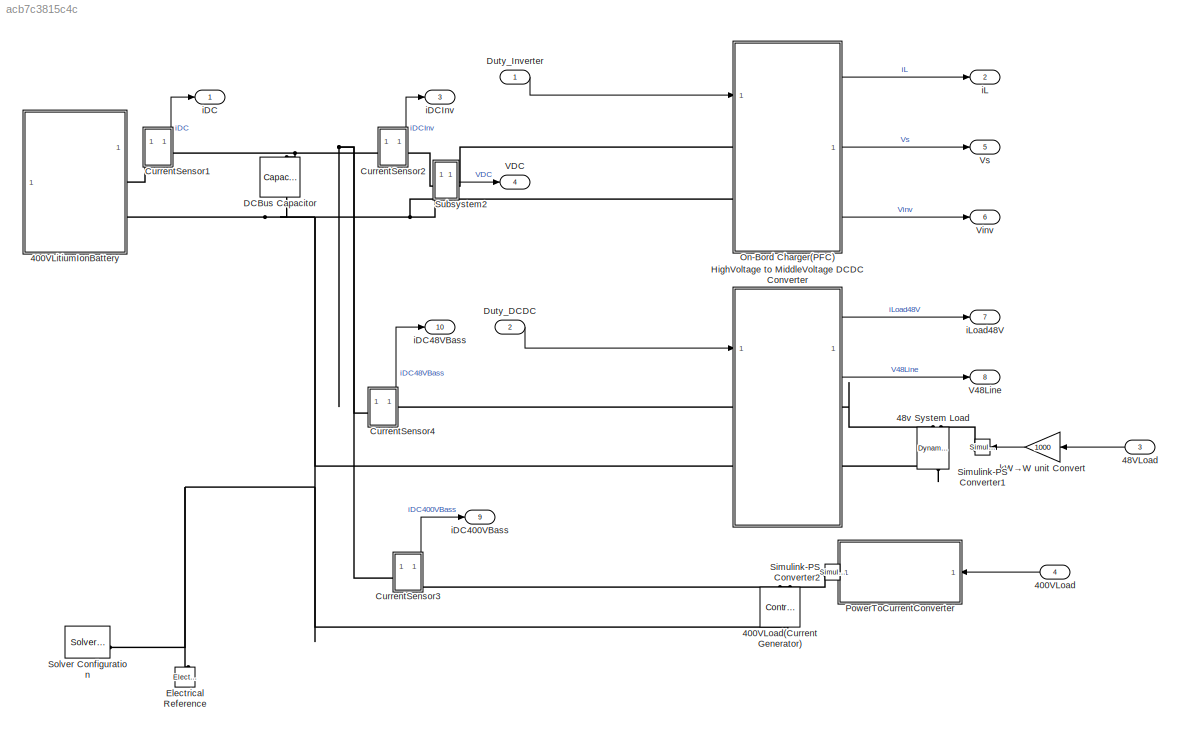
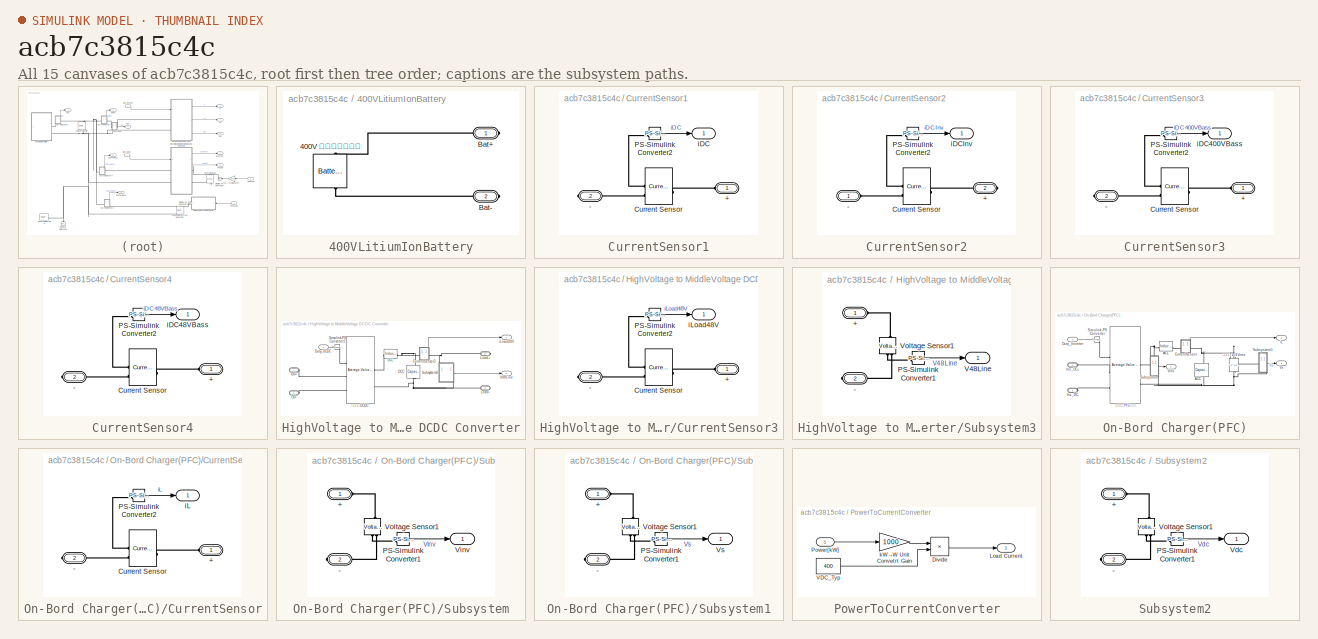
[diagram: thumbnail index - all 15 canvases of the model, root first then tree order]
MODEL slx_acb7c3815c4c
KIND model
CONFIG AbsTol = 1e-3
CONFIG EnableMultiTasking = off
CONFIG FixedStep = auto
CONFIG MaxStep = auto
CONFIG MinStep = auto
CONFIG RelTol = 1e-3
CONFIG SampleTimeConstraint = Unconstrained
CONFIG SolverName = ode23t
CONFIG StartTime = 0.0
CONFIG StopTime = 20
BLOCK [SubSystem] 400VLitiumIonBattery
BLOCK [Reference] 400VLitiumIonBattery/400V 理想特性蓄電池  REF=batteryecm_lib/Battery
  NameLocation = left
  SourceBlock = batteryecm_lib/Battery
  SourceType = Battery
BLOCK [PMIOPort] 400VLitiumIonBattery/Bat+
  Side = Right
BLOCK [PMIOPort] 400VLitiumIonBattery/Bat-
  Port = 2
  Side = Right
BLOCK [Inport] 400VLoad
  NameLocation = top
  Port = 4
BLOCK [Reference] 400VLoad(Current Generator)  REF=fl_lib/Electrical/Electrical Sources/Controlled Current
Source
  NameLocation = left
  SourceBlock = fl_lib/Electrical/Electrical Sources/Controlled Current\nSource
  SourceType = Controlled Current\nSource
BLOCK [Inport] 48VLoad
  Port = 3
BLOCK [Reference] 48v System Load  REF=ee_lib/Passive/Dynamic Load
  SourceBlock = ee_lib/Passive/Dynamic Load
  SourceType = Dynamic Load
BLOCK [SubSystem] CurrentSensor1
  PortSchema = {"entries":[{"content":{"sides":[{"content":{"connectorIds":["LConn1"]},"type":"ConnectorPlacement.EquallySpacedRectSide","uuid":"7286f59e-cee0-499d-832c-cf6f33a1b017"},{"content":{"connectorIds":["RConn1"],"side":"RIGHT"},"type":"ConnectorPlacement.EquallySpacedRectSide","uuid":"6a983281-a6bc-4a57-a5ba-c4da9a8828f4"},{"content":{"connectorIds":["Out1"],"side":"TOP"},"type":"ConnectorPlacement.Equ...<+251ch>  <repeated x6 — deduplicated; at blocks: CurrentSensor1, CurrentSensor2, CurrentSensor3, CurrentSensor4, CurrentSensor>
BLOCK [PMIOPort] CurrentSensor1/+
  Side = Left
BLOCK [PMIOPort] CurrentSensor1/-
  Port = 2
  Side = Right
BLOCK [Reference] CurrentSensor1/Current Sensor  REF=fl_lib/Electrical/Electrical Sensors/Current Sensor
  NameLocation = top
  SourceBlock = fl_lib/Electrical/Electrical Sensors/Current Sensor
  SourceType = Current Sensor
BLOCK [Reference] CurrentSensor1/PS-Simulink Converter2  REF=nesl_utility/PS-Simulink
Converter
  SourceBlock = nesl_utility/PS-Simulink\nConverter
  SourceType = PS-Simulink\nConverter
BLOCK [Outport] CurrentSensor1/iDC
BLOCK [SubSystem] CurrentSensor2
BLOCK [PMIOPort] CurrentSensor2/+
  Port = 2
  Side = Right
BLOCK [PMIOPort] CurrentSensor2/-
  Side = Left
BLOCK [Reference] CurrentSensor2/Current Sensor  REF=fl_lib/Electrical/Electrical Sensors/Current Sensor
  NameLocation = top
  SourceBlock = fl_lib/Electrical/Electrical Sensors/Current Sensor
  SourceType = Current Sensor
BLOCK [Reference] CurrentSensor2/PS-Simulink Converter2  REF=nesl_utility/PS-Simulink
Converter
  SourceBlock = nesl_utility/PS-Simulink\nConverter
  SourceType = PS-Simulink\nConverter
BLOCK [Outport] CurrentSensor2/iDCInv
BLOCK [SubSystem] CurrentSensor3
BLOCK [PMIOPort] CurrentSensor3/+
  Side = Left
BLOCK [PMIOPort] CurrentSensor3/-
  Port = 2
  Side = Right
BLOCK [Reference] CurrentSensor3/Current Sensor  REF=fl_lib/Electrical/Electrical Sensors/Current Sensor
  NameLocation = top
  SourceBlock = fl_lib/Electrical/Electrical Sensors/Current Sensor
  SourceType = Current Sensor
BLOCK [Reference] CurrentSensor3/PS-Simulink Converter2  REF=nesl_utility/PS-Simulink
Converter
  SourceBlock = nesl_utility/PS-Simulink\nConverter
  SourceType = PS-Simulink\nConverter
BLOCK [Outport] CurrentSensor3/iDC400VBass
BLOCK [SubSystem] CurrentSensor4
BLOCK [PMIOPort] CurrentSensor4/+
  Side = Left
BLOCK [PMIOPort] CurrentSensor4/-
  Port = 2
  Side = Right
BLOCK [Reference] CurrentSensor4/Current Sensor  REF=fl_lib/Electrical/Electrical Sensors/Current Sensor
  NameLocation = top
  SourceBlock = fl_lib/Electrical/Electrical Sensors/Current Sensor
  SourceType = Current Sensor
BLOCK [Reference] CurrentSensor4/PS-Simulink Converter2  REF=nesl_utility/PS-Simulink
Converter
  SourceBlock = nesl_utility/PS-Simulink\nConverter
  SourceType = PS-Simulink\nConverter
BLOCK [Outport] CurrentSensor4/iDC48VBass
BLOCK [Reference] DCBus Capacitor  REF=ee_lib/Passive/Capacitor
  NameLocation = left
  SourceBlock = ee_lib/Passive/Capacitor
  SourceType = Capacitor
BLOCK [Inport] Duty_DCDC
  OutDataTypeStr = double
  Port = 2
  PortDimensions = 1
  SampleTime = 0
  SamplingMode = Sample based
  SignalType = real
BLOCK [Inport] Duty_Inverter
  OutDataTypeStr = double
  PortDimensions = 1
  SampleTime = 0
  SamplingMode = Sample based
  SignalType = real
BLOCK [Reference] Electrical Reference  REF=fl_lib/Electrical/Electrical Elements/Electrical Reference
  SourceBlock = fl_lib/Electrical/Electrical Elements/Electrical Reference
  SourceType = Electrical Reference
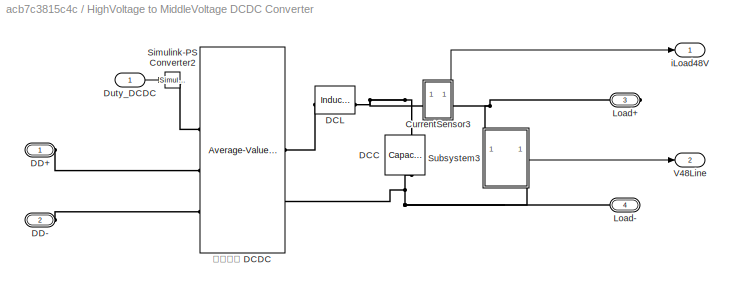
BLOCK [SubSystem] HighVoltage to MiddleVoltage DCDC Converter
BLOCK [SubSystem] HighVoltage to MiddleVoltage DCDC Converter/CurrentSensor3
BLOCK [PMIOPort] HighVoltage to MiddleVoltage DCDC Converter/CurrentSensor3/+
  Side = Left
BLOCK [PMIOPort] HighVoltage to MiddleVoltage DCDC Converter/CurrentSensor3/-
  Port = 2
  Side = Right
BLOCK [Reference] HighVoltage to MiddleVoltage DCDC Converter/CurrentSensor3/Current Sensor  REF=fl_lib/Electrical/Electrical Sensors/Current Sensor
  NameLocation = top
  SourceBlock = fl_lib/Electrical/Electrical Sensors/Current Sensor
  SourceType = Current Sensor
BLOCK [Reference] HighVoltage to MiddleVoltage DCDC Converter/CurrentSensor3/PS-Simulink Converter2  REF=nesl_utility/PS-Simulink
Converter
  SourceBlock = nesl_utility/PS-Simulink\nConverter
  SourceType = PS-Simulink\nConverter
BLOCK [Outport] HighVoltage to MiddleVoltage DCDC Converter/CurrentSensor3/iLoad48V
BLOCK [Reference] HighVoltage to MiddleVoltage DCDC Converter/DCC  REF=ee_lib/Passive/Capacitor
  NameLocation = left
  SourceBlock = ee_lib/Passive/Capacitor
  SourceType = Capacitor
BLOCK [Reference] HighVoltage to MiddleVoltage DCDC Converter/DCL  REF=ee_lib/Passive/Inductor
  SourceBlock = ee_lib/Passive/Inductor
  SourceType = Inductor
BLOCK [PMIOPort] HighVoltage to MiddleVoltage DCDC Converter/DD+
  Side = Left
BLOCK [PMIOPort] HighVoltage to MiddleVoltage DCDC Converter/DD-
  Port = 2
  Side = Left
BLOCK [Inport] HighVoltage to MiddleVoltage DCDC Converter/Duty_DCDC
BLOCK [PMIOPort] HighVoltage to MiddleVoltage DCDC Converter/Load+
  NameLocation = top
  Port = 3
  Side = Right
BLOCK [PMIOPort] HighVoltage to MiddleVoltage DCDC Converter/Load-
  NameLocation = top
  Port = 4
  Side = Right
BLOCK [Reference] HighVoltage to MiddleVoltage DCDC Converter/Simulink-PS Converter2  REF=nesl_utility/Simulink-PS
Converter
  SourceBlock = nesl_utility/Simulink-PS\nConverter
  SourceType = Simulink-PS\nConverter
BLOCK [SubSystem] HighVoltage to MiddleVoltage DCDC Converter/Subsystem3
  PortSchema = {"entries":[{"content":{"sides":[{"content":{"connectorIds":[]},"type":"ConnectorPlacement.EquallySpacedRectSide","uuid":"7286f59e-cee0-499d-832c-cf6f33a1b017"},{"content":{"connectorIds":["Out1"],"side":"RIGHT"},"type":"ConnectorPlacement.EquallySpacedRectSide","uuid":"6a983281-a6bc-4a57-a5ba-c4da9a8828f4"},{"content":{"connectorIds":["LConn1"],"side":"TOP"},"type":"ConnectorPlacement.EquallySpac...<+395ch>  <repeated x3 — deduplicated; at blocks: Subsystem3, Subsystem, Subsystem1>
BLOCK [PMIOPort] HighVoltage to MiddleVoltage DCDC Converter/Subsystem3/+
  Side = Left
BLOCK [PMIOPort] HighVoltage to MiddleVoltage DCDC Converter/Subsystem3/-
  NameLocation = top
  Port = 2
  Side = Right
BLOCK [Reference] HighVoltage to MiddleVoltage DCDC Converter/Subsystem3/PS-Simulink Converter1  REF=nesl_utility/PS-Simulink
Converter
  SourceBlock = nesl_utility/PS-Simulink\nConverter
  SourceType = PS-Simulink\nConverter
BLOCK [Outport] HighVoltage to MiddleVoltage DCDC Converter/Subsystem3/V48Line
BLOCK [Reference] HighVoltage to MiddleVoltage DCDC Converter/Subsystem3/Voltage Sensor1  REF=fl_lib/Electrical/Electrical Sensors/Voltage Sensor
  NameLocation = right
  SourceBlock = fl_lib/Electrical/Electrical Sensors/Voltage Sensor
  SourceType = Voltage Sensor
BLOCK [Outport] HighVoltage to MiddleVoltage DCDC Converter/V48Line
  Port = 2
BLOCK [Outport] HighVoltage to MiddleVoltage DCDC Converter/iLoad48V
BLOCK [Reference] HighVoltage to MiddleVoltage DCDC Converter/平均電圧 DCDC  REF=ee_lib/Semiconductors &
Converters/Converters/Average-Value
Chopper
  SourceBlock = ee_lib/Semiconductors &\nConverters/Converters/Average-Value\nChopper
  SourceType = Average-Value\nChopper
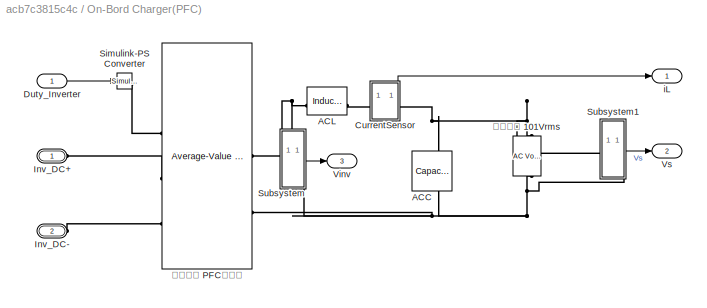
BLOCK [SubSystem] On-Bord Charger(PFC)
BLOCK [Reference] On-Bord Charger(PFC)/ACC  REF=ee_lib/Passive/Capacitor
  NameLocation = right
  SourceBlock = ee_lib/Passive/Capacitor
  SourceType = Capacitor
BLOCK [Reference] On-Bord Charger(PFC)/ACL  REF=ee_lib/Passive/Inductor
  SourceBlock = ee_lib/Passive/Inductor
  SourceType = Inductor
BLOCK [SubSystem] On-Bord Charger(PFC)/CurrentSensor
BLOCK [PMIOPort] On-Bord Charger(PFC)/CurrentSensor/+
  Side = Left
BLOCK [PMIOPort] On-Bord Charger(PFC)/CurrentSensor/-
  Port = 2
  Side = Right
BLOCK [Reference] On-Bord Charger(PFC)/CurrentSensor/Current Sensor  REF=fl_lib/Electrical/Electrical Sensors/Current Sensor
  NameLocation = top
  SourceBlock = fl_lib/Electrical/Electrical Sensors/Current Sensor
  SourceType = Current Sensor
BLOCK [Reference] On-Bord Charger(PFC)/CurrentSensor/PS-Simulink Converter2  REF=nesl_utility/PS-Simulink
Converter
  SourceBlock = nesl_utility/PS-Simulink\nConverter
  SourceType = PS-Simulink\nConverter
BLOCK [Outport] On-Bord Charger(PFC)/CurrentSensor/iL
BLOCK [Inport] On-Bord Charger(PFC)/Duty_Inverter
BLOCK [PMIOPort] On-Bord Charger(PFC)/Inv_DC+
  Side = Left
BLOCK [PMIOPort] On-Bord Charger(PFC)/Inv_DC-
  Port = 2
  Side = Left
BLOCK [Reference] On-Bord Charger(PFC)/Simulink-PS Converter  REF=nesl_utility/Simulink-PS
Converter
  SourceBlock = nesl_utility/Simulink-PS\nConverter
  SourceType = Simulink-PS\nConverter
BLOCK [SubSystem] On-Bord Charger(PFC)/Subsystem
BLOCK [PMIOPort] On-Bord Charger(PFC)/Subsystem/+
  Side = Left
BLOCK [PMIOPort] On-Bord Charger(PFC)/Subsystem/-
  NameLocation = top
  Port = 2
  Side = Right
BLOCK [Reference] On-Bord Charger(PFC)/Subsystem/PS-Simulink Converter1  REF=nesl_utility/PS-Simulink
Converter
  SourceBlock = nesl_utility/PS-Simulink\nConverter
  SourceType = PS-Simulink\nConverter
BLOCK [Outport] On-Bord Charger(PFC)/Subsystem/Vinv
BLOCK [Reference] On-Bord Charger(PFC)/Subsystem/Voltage Sensor1  REF=fl_lib/Electrical/Electrical Sensors/Voltage Sensor
  NameLocation = right
  SourceBlock = fl_lib/Electrical/Electrical Sensors/Voltage Sensor
  SourceType = Voltage Sensor
BLOCK [SubSystem] On-Bord Charger(PFC)/Subsystem1
BLOCK [PMIOPort] On-Bord Charger(PFC)/Subsystem1/+
  Side = Left
BLOCK [PMIOPort] On-Bord Charger(PFC)/Subsystem1/-
  NameLocation = top
  Port = 2
  Side = Right
BLOCK [Reference] On-Bord Charger(PFC)/Subsystem1/PS-Simulink Converter1  REF=nesl_utility/PS-Simulink
Converter
  SourceBlock = nesl_utility/PS-Simulink\nConverter
  SourceType = PS-Simulink\nConverter
BLOCK [Reference] On-Bord Charger(PFC)/Subsystem1/Voltage Sensor1  REF=fl_lib/Electrical/Electrical Sensors/Voltage Sensor
  NameLocation = right
  SourceBlock = fl_lib/Electrical/Electrical Sensors/Voltage Sensor
  SourceType = Voltage Sensor
BLOCK [Outport] On-Bord Charger(PFC)/Subsystem1/Vs
BLOCK [Outport] On-Bord Charger(PFC)/Vinv
  Port = 3
BLOCK [Outport] On-Bord Charger(PFC)/Vs
  Port = 2
BLOCK [Outport] On-Bord Charger(PFC)/iL
BLOCK [Reference] On-Bord Charger(PFC)/平均電圧 PFCモデル  REF=ee_lib/Semiconductors &
Converters/Converters/Average-Value
Chopper
  SourceBlock = ee_lib/Semiconductors &\nConverters/Converters/Average-Value\nChopper
  SourceType = Average-Value\nChopper
BLOCK [Reference] On-Bord Charger(PFC)/系統電圧 101Vrms  REF=fl_lib/Electrical/Electrical Sources/AC Voltage Source
  NameLocation = right
  SourceBlock = fl_lib/Electrical/Electrical Sources/AC Voltage Source
  SourceType = AC Voltage Source
BLOCK [SubSystem] PowerToCurrentConverter
BLOCK [Product] PowerToCurrentConverter/Divide
  Inputs = */
BLOCK [Outport] PowerToCurrentConverter/Load Current
  NameLocation = top
BLOCK [Inport] PowerToCurrentConverter/Power[kW]
  NameLocation = top
BLOCK [Constant] PowerToCurrentConverter/VDC_Typ
  Value = 400
BLOCK [Gain] PowerToCurrentConverter/kW→W Unit Convetrt Gain
  Gain = 1000
  NameLocation = top
BLOCK [Reference] Simulink-PS Converter1  REF=nesl_utility/Simulink-PS
Converter
  NameLocation = top
  SourceBlock = nesl_utility/Simulink-PS\nConverter
  SourceType = Simulink-PS\nConverter
BLOCK [Reference] Simulink-PS Converter2  REF=nesl_utility/Simulink-PS
Converter
  NameLocation = top
  SourceBlock = nesl_utility/Simulink-PS\nConverter
  SourceType = Simulink-PS\nConverter
BLOCK [Reference] Solver Configuration  REF=nesl_utility/Solver
Configuration
  SourceBlock = nesl_utility/Solver\nConfiguration
  SourceType = Solver\nConfiguration
BLOCK [SubSystem] Subsystem2
  PortSchema = {"entries":[{"content":{"sides":[{"content":{"connectorIds":["Out1"]},"type":"ConnectorPlacement.EquallySpacedRectSide","uuid":"7286f59e-cee0-499d-832c-cf6f33a1b017"},{"content":{"connectorIds":[],"side":"RIGHT"},"type":"ConnectorPlacement.EquallySpacedRectSide","uuid":"6a983281-a6bc-4a57-a5ba-c4da9a8828f4"},{"content":{"connectorIds":["LConn1"],"side":"TOP"},"type":"ConnectorPlacement.EquallySpac...<+395ch>
BLOCK [PMIOPort] Subsystem2/+
  Side = Left
BLOCK [PMIOPort] Subsystem2/-
  NameLocation = top
  Port = 2
  Side = Right
BLOCK [Reference] Subsystem2/PS-Simulink Converter1  REF=nesl_utility/PS-Simulink
Converter
  SourceBlock = nesl_utility/PS-Simulink\nConverter
  SourceType = PS-Simulink\nConverter
BLOCK [Outport] Subsystem2/Vdc
BLOCK [Reference] Subsystem2/Voltage Sensor1  REF=fl_lib/Electrical/Electrical Sensors/Voltage Sensor
  NameLocation = right
  SourceBlock = fl_lib/Electrical/Electrical Sensors/Voltage Sensor
  SourceType = Voltage Sensor
BLOCK [Outport] V48Line
  OutDataTypeStr = double
  Port = 8
  PortDimensions = 1
  SampleTime = 0
  SamplingMode = Sample based
  SignalType = real
BLOCK [Outport] VDC
  OutDataTypeStr = double
  Port = 4
  PortDimensions = 1
  SampleTime = 0
  SamplingMode = Sample based
  SignalType = real
BLOCK [Outport] Vinv
  OutDataTypeStr = double
  Port = 6
  PortDimensions = 1
  SampleTime = 0
  SamplingMode = Sample based
  SignalType = real
BLOCK [Outport] Vs
  OutDataTypeStr = double
  Port = 5
  PortDimensions = 1
  SampleTime = 0
  SamplingMode = Sample based
  SignalType = real
BLOCK [Outport] iDC
  OutDataTypeStr = double
  PortDimensions = 1
  SampleTime = 0
  SamplingMode = Sample based
  SignalType = real
BLOCK [Outport] iDC400VBass
  OutDataTypeStr = double
  Port = 9
  PortDimensions = 1
  SampleTime = 0
  SamplingMode = Sample based
  SignalType = real
BLOCK [Outport] iDC48VBass
  OutDataTypeStr = double
  Port = 10
  PortDimensions = 1
  SampleTime = 0
  SamplingMode = Sample based
  SignalType = real
BLOCK [Outport] iDCInv
  OutDataTypeStr = double
  Port = 3
  PortDimensions = 1
  SampleTime = 0
  SamplingMode = Sample based
  SignalType = real
BLOCK [Outport] iL
  OutDataTypeStr = double
  Port = 2
  PortDimensions = 1
  SampleTime = 0
  SamplingMode = Sample based
  SignalType = real
BLOCK [Outport] iLoad48V
  OutDataTypeStr = double
  Port = 7
  PortDimensions = 1
  SampleTime = 0
  SamplingMode = Sample based
  SignalType = real
BLOCK [Gain] kW→W unit Convert
  Gain = 1000
LINE 400VLoad:1 -> PowerToCurrentConverter:1
LINE 48VLoad:1 -> kW→W unit Convert:1
LINE CurrentSensor1/PS-Simulink Converter2:1 -> CurrentSensor1/iDC:1
LINE CurrentSensor1:1 -> iDC:1
LINE CurrentSensor2/PS-Simulink Converter2:1 -> CurrentSensor2/iDCInv:1
LINE CurrentSensor2:1 -> iDCInv:1
LINE CurrentSensor3/PS-Simulink Converter2:1 -> CurrentSensor3/iDC400VBass:1
LINE CurrentSensor3:1 -> iDC400VBass:1
LINE CurrentSensor4/PS-Simulink Converter2:1 -> CurrentSensor4/iDC48VBass:1
LINE CurrentSensor4:1 -> iDC48VBass:1
LINE Duty_DCDC:1 -> HighVoltage to MiddleVoltage DCDC Converter:1
LINE Duty_Inverter:1 -> On-Bord Charger(PFC):1
LINE HighVoltage to MiddleVoltage DCDC Converter/CurrentSensor3/PS-Simulink Converter2:1 -> HighVoltage to MiddleVoltage DCDC Converter/CurrentSensor3/iLoad48V:1
LINE HighVoltage to MiddleVoltage DCDC Converter/CurrentSensor3:1 -> HighVoltage to MiddleVoltage DCDC Converter/iLoad48V:1
LINE HighVoltage to MiddleVoltage DCDC Converter/Duty_DCDC:1 -> HighVoltage to MiddleVoltage DCDC Converter/Simulink-PS Converter2:1
LINE HighVoltage to MiddleVoltage DCDC Converter/Subsystem3/PS-Simulink Converter1:1 -> HighVoltage to MiddleVoltage DCDC Converter/Subsystem3/V48Line:1
LINE HighVoltage to MiddleVoltage DCDC Converter/Subsystem3:1 -> HighVoltage to MiddleVoltage DCDC Converter/V48Line:1
LINE HighVoltage to MiddleVoltage DCDC Converter:1 -> iLoad48V:1
LINE HighVoltage to MiddleVoltage DCDC Converter:2 -> V48Line:1
LINE On-Bord Charger(PFC)/CurrentSensor/PS-Simulink Converter2:1 -> On-Bord Charger(PFC)/CurrentSensor/iL:1
LINE On-Bord Charger(PFC)/CurrentSensor:1 -> On-Bord Charger(PFC)/iL:1
LINE On-Bord Charger(PFC)/Duty_Inverter:1 -> On-Bord Charger(PFC)/Simulink-PS Converter:1
LINE On-Bord Charger(PFC)/Subsystem/PS-Simulink Converter1:1 -> On-Bord Charger(PFC)/Subsystem/Vinv:1
LINE On-Bord Charger(PFC)/Subsystem1/PS-Simulink Converter1:1 -> On-Bord Charger(PFC)/Subsystem1/Vs:1
LINE On-Bord Charger(PFC)/Subsystem1:1 -> On-Bord Charger(PFC)/Vs:1
LINE On-Bord Charger(PFC)/Subsystem:1 -> On-Bord Charger(PFC)/Vinv:1
LINE On-Bord Charger(PFC):1 -> iL:1
LINE On-Bord Charger(PFC):2 -> Vs:1
LINE On-Bord Charger(PFC):3 -> Vinv:1
LINE PowerToCurrentConverter/Divide:1 -> PowerToCurrentConverter/Load Current:1
LINE PowerToCurrentConverter/Power[kW]:1 -> PowerToCurrentConverter/kW→W Unit Convetrt Gain:1
LINE PowerToCurrentConverter/VDC_Typ:1 -> PowerToCurrentConverter/Divide:2
LINE PowerToCurrentConverter/kW→W Unit Convetrt Gain:1 -> PowerToCurrentConverter/Divide:1
LINE PowerToCurrentConverter:1 -> Simulink-PS Converter2:1
LINE Subsystem2/PS-Simulink Converter1:1 -> Subsystem2/Vdc:1
LINE Subsystem2:1 -> VDC:1
LINE kW→W unit Convert:1 -> Simulink-PS Converter1:1
PLINE 400VLitiumIonBattery/400V 理想特性蓄電池:LConn1 -- 400VLitiumIonBattery/Bat+:RConn1
PLINE 400VLitiumIonBattery/400V 理想特性蓄電池:RConn1 -- 400VLitiumIonBattery/Bat-:RConn1
PLINE 400VLitiumIonBattery:RConn1 -- CurrentSensor1:LConn1
PNET net1: 400VLitiumIonBattery:RConn2 -- 400VLoad(Current Generator):LConn1 -- DCBus Capacitor:RConn1 -- Electrical Reference:LConn1 -- HighVoltage to MiddleVoltage DCDC Converter:LConn2 -- On-Bord Charger(PFC):LConn2 -- Solver Configuration:RConn1 -- Subsystem2:RConn1
PLINE 400VLoad(Current Generator):RConn1 -- Simulink-PS Converter2:RConn1
PLINE 400VLoad(Current Generator):RConn2 -- CurrentSensor3:RConn1
PLINE 48v System Load:LConn1 -- HighVoltage to MiddleVoltage DCDC Converter:RConn1
PLINE 48v System Load:LConn2 -- Simulink-PS Converter1:RConn1
PLINE 48v System Load:RConn1 -- HighVoltage to MiddleVoltage DCDC Converter:RConn2
PLINE CurrentSensor1/+:RConn1 -- CurrentSensor1/Current Sensor:LConn1
PLINE CurrentSensor1/-:RConn1 -- CurrentSensor1/Current Sensor:RConn2
PLINE CurrentSensor1/Current Sensor:RConn1 -- CurrentSensor1/PS-Simulink Converter2:LConn1
PNET net2: CurrentSensor1:RConn1 -- CurrentSensor2:LConn1 -- CurrentSensor3:LConn1 -- CurrentSensor4:LConn1 -- DCBus Capacitor:LConn1
PLINE CurrentSensor2/+:RConn1 -- CurrentSensor2/Current Sensor:LConn1
PLINE CurrentSensor2/-:RConn1 -- CurrentSensor2/Current Sensor:RConn2
PLINE CurrentSensor2/Current Sensor:RConn1 -- CurrentSensor2/PS-Simulink Converter2:LConn1
PNET net3: CurrentSensor2:RConn1 -- On-Bord Charger(PFC):LConn1 -- Subsystem2:LConn1
PLINE CurrentSensor3/+:RConn1 -- CurrentSensor3/Current Sensor:LConn1
PLINE CurrentSensor3/-:RConn1 -- CurrentSensor3/Current Sensor:RConn2
PLINE CurrentSensor3/Current Sensor:RConn1 -- CurrentSensor3/PS-Simulink Converter2:LConn1
PLINE CurrentSensor4/+:RConn1 -- CurrentSensor4/Current Sensor:LConn1
PLINE CurrentSensor4/-:RConn1 -- CurrentSensor4/Current Sensor:RConn2
PLINE CurrentSensor4/Current Sensor:RConn1 -- CurrentSensor4/PS-Simulink Converter2:LConn1
PLINE CurrentSensor4:RConn1 -- HighVoltage to MiddleVoltage DCDC Converter:LConn1
PLINE HighVoltage to MiddleVoltage DCDC Converter/CurrentSensor3/+:RConn1 -- HighVoltage to MiddleVoltage DCDC Converter/CurrentSensor3/Current Sensor:LConn1
PLINE HighVoltage to MiddleVoltage DCDC Converter/CurrentSensor3/-:RConn1 -- HighVoltage to MiddleVoltage DCDC Converter/CurrentSensor3/Current Sensor:RConn2
PLINE HighVoltage to MiddleVoltage DCDC Converter/CurrentSensor3/Current Sensor:RConn1 -- HighVoltage to MiddleVoltage DCDC Converter/CurrentSensor3/PS-Simulink Converter2:LConn1
PNET net4: HighVoltage to MiddleVoltage DCDC Converter/CurrentSensor3:LConn1 -- HighVoltage to MiddleVoltage DCDC Converter/DCC:LConn1 -- HighVoltage to MiddleVoltage DCDC Converter/DCL:RConn1
PNET net5: HighVoltage to MiddleVoltage DCDC Converter/CurrentSensor3:RConn1 -- HighVoltage to MiddleVoltage DCDC Converter/Load+:RConn1 -- HighVoltage to MiddleVoltage DCDC Converter/Subsystem3:LConn1
PNET net6: HighVoltage to MiddleVoltage DCDC Converter/DCC:RConn1 -- HighVoltage to MiddleVoltage DCDC Converter/Load-:RConn1 -- HighVoltage to MiddleVoltage DCDC Converter/Subsystem3:RConn1 -- HighVoltage to MiddleVoltage DCDC Converter/平均電圧 DCDC:RConn2
PLINE HighVoltage to MiddleVoltage DCDC Converter/DCL:LConn1 -- HighVoltage to MiddleVoltage DCDC Converter/平均電圧 DCDC:RConn1
PLINE HighVoltage to MiddleVoltage DCDC Converter/DD+:RConn1 -- HighVoltage to MiddleVoltage DCDC Converter/平均電圧 DCDC:LConn2
PLINE HighVoltage to MiddleVoltage DCDC Converter/DD-:RConn1 -- HighVoltage to MiddleVoltage DCDC Converter/平均電圧 DCDC:LConn3
PLINE HighVoltage to MiddleVoltage DCDC Converter/Simulink-PS Converter2:RConn1 -- HighVoltage to MiddleVoltage DCDC Converter/平均電圧 DCDC:LConn1
PLINE HighVoltage to MiddleVoltage DCDC Converter/Subsystem3/+:RConn1 -- HighVoltage to MiddleVoltage DCDC Converter/Subsystem3/Voltage Sensor1:LConn1
PLINE HighVoltage to MiddleVoltage DCDC Converter/Subsystem3/-:RConn1 -- HighVoltage to MiddleVoltage DCDC Converter/Subsystem3/Voltage Sensor1:RConn2
PLINE HighVoltage to MiddleVoltage DCDC Converter/Subsystem3/PS-Simulink Converter1:LConn1 -- HighVoltage to MiddleVoltage DCDC Converter/Subsystem3/Voltage Sensor1:RConn1
PNET net7: On-Bord Charger(PFC)/ACC:LConn1 -- On-Bord Charger(PFC)/CurrentSensor:RConn1 -- On-Bord Charger(PFC)/Subsystem1:LConn1 -- On-Bord Charger(PFC)/系統電圧 101Vrms:LConn1
PNET net8: On-Bord Charger(PFC)/ACC:RConn1 -- On-Bord Charger(PFC)/Subsystem1:RConn1 -- On-Bord Charger(PFC)/Subsystem:RConn1 -- On-Bord Charger(PFC)/平均電圧 PFCモデル:RConn2 -- On-Bord Charger(PFC)/系統電圧 101Vrms:RConn1
PNET net9: On-Bord Charger(PFC)/ACL:LConn1 -- On-Bord Charger(PFC)/Subsystem:LConn1 -- On-Bord Charger(PFC)/平均電圧 PFCモデル:RConn1
PLINE On-Bord Charger(PFC)/ACL:RConn1 -- On-Bord Charger(PFC)/CurrentSensor:LConn1
PLINE On-Bord Charger(PFC)/CurrentSensor/+:RConn1 -- On-Bord Charger(PFC)/CurrentSensor/Current Sensor:LConn1
PLINE On-Bord Charger(PFC)/CurrentSensor/-:RConn1 -- On-Bord Charger(PFC)/CurrentSensor/Current Sensor:RConn2
PLINE On-Bord Charger(PFC)/CurrentSensor/Current Sensor:RConn1 -- On-Bord Charger(PFC)/CurrentSensor/PS-Simulink Converter2:LConn1
PLINE On-Bord Charger(PFC)/Inv_DC+:RConn1 -- On-Bord Charger(PFC)/平均電圧 PFCモデル:LConn2
PLINE On-Bord Charger(PFC)/Inv_DC-:RConn1 -- On-Bord Charger(PFC)/平均電圧 PFCモデル:LConn3
PLINE On-Bord Charger(PFC)/Simulink-PS Converter:RConn1 -- On-Bord Charger(PFC)/平均電圧 PFCモデル:LConn1
PLINE On-Bord Charger(PFC)/Subsystem/+:RConn1 -- On-Bord Charger(PFC)/Subsystem/Voltage Sensor1:LConn1
PLINE On-Bord Charger(PFC)/Subsystem/-:RConn1 -- On-Bord Charger(PFC)/Subsystem/Voltage Sensor1:RConn2
PLINE On-Bord Charger(PFC)/Subsystem/PS-Simulink Converter1:LConn1 -- On-Bord Charger(PFC)/Subsystem/Voltage Sensor1:RConn1
PLINE On-Bord Charger(PFC)/Subsystem1/+:RConn1 -- On-Bord Charger(PFC)/Subsystem1/Voltage Sensor1:LConn1
PLINE On-Bord Charger(PFC)/Subsystem1/-:RConn1 -- On-Bord Charger(PFC)/Subsystem1/Voltage Sensor1:RConn2
PLINE On-Bord Charger(PFC)/Subsystem1/PS-Simulink Converter1:LConn1 -- On-Bord Charger(PFC)/Subsystem1/Voltage Sensor1:RConn1
PLINE Subsystem2/+:RConn1 -- Subsystem2/Voltage Sensor1:LConn1
PLINE Subsystem2/-:RConn1 -- Subsystem2/Voltage Sensor1:RConn2
PLINE Subsystem2/PS-Simulink Converter1:LConn1 -- Subsystem2/Voltage Sensor1:RConn1
note: PNET lines group multi-terminal physical nets as a canonical sorted terminal list (undirected conserving connections); 2-terminal nets keep the pairwise PLINE form
